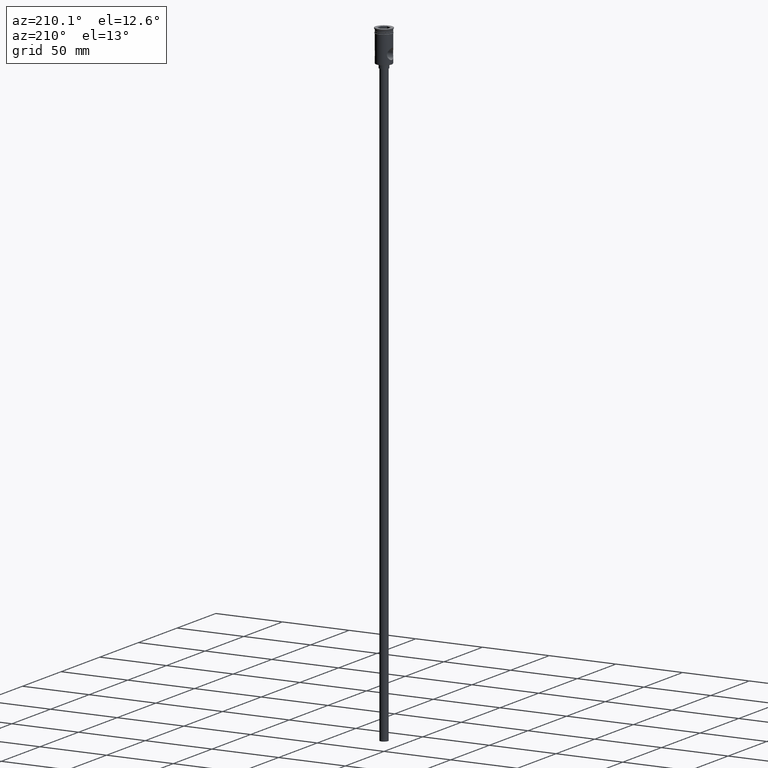
[diagram: clean part render]
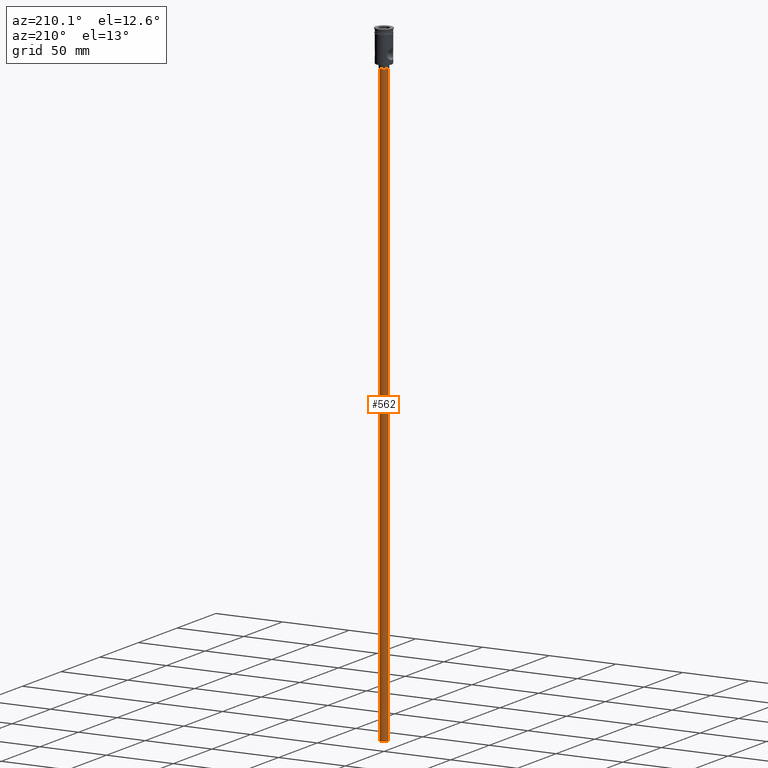
[diagram: same view with one face highlighted and labeled with its STEP entity id]
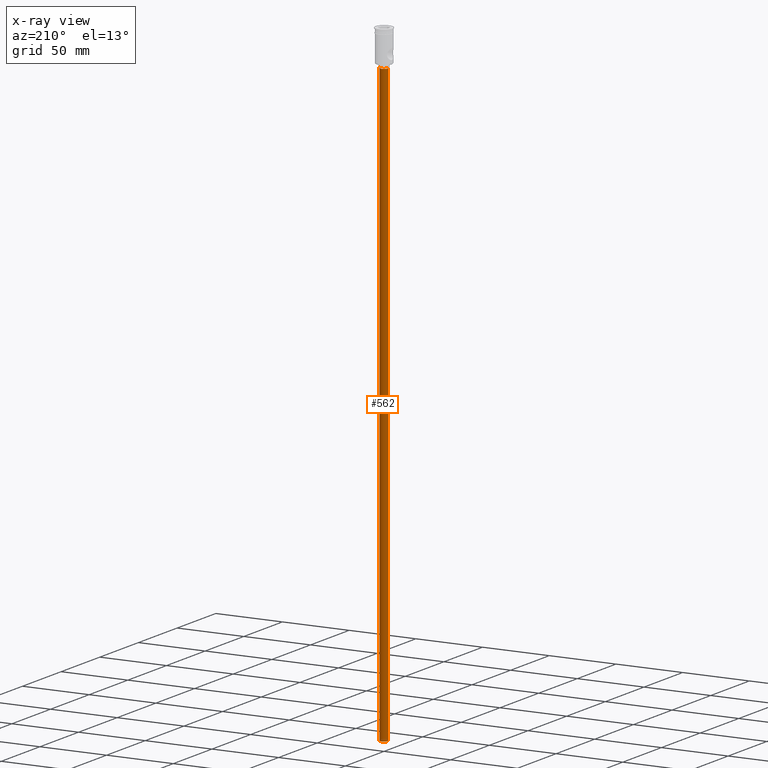
[diagram: x-ray of the same camera — body ghosted, the highlighted face saturated]
A machine part, auxiliary view. The second image highlights one B-rep face of the part: STEP entity #562.
The next image is the same camera in x-ray: the body ghosted, the highlighted face saturated — about 0% of this face is hidden behind the body in this view.
In plain terms, the highlighted cylindrical surface (edge-blend (fillet) strip) has radius 3 mm, axis along (-0, -0, 1).
Its self-contained STEP definition (entity closure, byte-faithful):
#56 = ORIENTED_EDGE ( 'NONE', *, *, #1367, .T. ) ;
#67 = CARTESIAN_POINT ( 'NONE',  ( 3.000000000000000444, 0.000000000000000000, -474.0000000000000568 ) ) ;
#241 = VERTEX_POINT ( 'NONE', #1136 ) ;
#246 = VERTEX_POINT ( 'NONE', #67 ) ;
#247 = VECTOR ( 'NONE', #390, 1000.000000000000000 ) ;
#282 = DIRECTION ( 'NONE',  ( 0.000000000000000000, 0.000000000000000000, -1.000000000000000000 ) ) ;
#290 = CARTESIAN_POINT ( 'NONE',  ( 3.000000000000000444, 0.000000000000000000, -474.0000000000000568 ) ) ;
#333 = FACE_OUTER_BOUND ( 'NONE', #594, .T. ) ;
#337 = CARTESIAN_POINT ( 'NONE',  ( -3.000000000000000444, 3.673940397442060361E-16, -27.00000000000000000 ) ) ;
#390 = DIRECTION ( 'NONE',  ( -0.000000000000000000, -0.000000000000000000, 1.000000000000000000 ) ) ;
#431 = DIRECTION ( 'NONE',  ( 0.000000000000000000, 0.000000000000000000, -1.000000000000000000 ) ) ;
#461 = EDGE_CURVE ( 'NONE', #616, #796, #841, .T. ) ;
#511 = DIRECTION ( 'NONE',  ( -1.000000000000000000, 0.000000000000000000, 0.000000000000000000 ) ) ;
#521 = VECTOR ( 'NONE', #752, 1000.000000000000000 ) ;
#562 = ADVANCED_FACE ( 'NONE', ( #333 ), #897, .T. ) ;
#594 = EDGE_LOOP ( 'NONE', ( #1309, #56, #1259, #1056 ) ) ;
#616 = VERTEX_POINT ( 'NONE', #337 ) ;
#639 = CARTESIAN_POINT ( 'NONE',  ( -3.000000000000000444, 3.673940397442060361E-16, -474.0000000000000568 ) ) ;
#655 = AXIS2_PLACEMENT_3D ( 'NONE', #1157, #282, #511 ) ;
#752 = DIRECTION ( 'NONE',  ( -0.000000000000000000, -0.000000000000000000, 1.000000000000000000 ) ) ;
#786 = AXIS2_PLACEMENT_3D ( 'NONE', #980, #431, #986 ) ;
#796 = VERTEX_POINT ( 'NONE', #1334 ) ;
#829 = LINE ( 'NONE', #639, #247 ) ;
#841 = CIRCLE ( 'NONE', #655, 3.000000000000000444 ) ;
#897 = CYLINDRICAL_SURFACE ( 'NONE', #1327, 3.000000000000000444 ) ;
#980 = CARTESIAN_POINT ( 'NONE',  ( 0.000000000000000000, 0.000000000000000000, -474.0000000000000568 ) ) ;
#986 = DIRECTION ( 'NONE',  ( -1.000000000000000000, 0.000000000000000000, 0.000000000000000000 ) ) ;
#1033 = CIRCLE ( 'NONE', #786, 3.000000000000000444 ) ;
#1039 = EDGE_CURVE ( 'NONE', #241, #246, #1033, .T. ) ;
#1056 = ORIENTED_EDGE ( 'NONE', *, *, #1357, .F. ) ;
#1103 = DIRECTION ( 'NONE',  ( -0.000000000000000000, -0.000000000000000000, 1.000000000000000000 ) ) ;
#1136 = CARTESIAN_POINT ( 'NONE',  ( -3.000000000000000444, 3.673940397442060361E-16, -474.0000000000000568 ) ) ;
#1157 = CARTESIAN_POINT ( 'NONE',  ( 0.000000000000000000, 0.000000000000000000, -27.00000000000000000 ) ) ;
#1244 = DIRECTION ( 'NONE',  ( 1.000000000000000000, 0.000000000000000000, 0.000000000000000000 ) ) ;
#1259 = ORIENTED_EDGE ( 'NONE', *, *, #461, .T. ) ;
#1309 = ORIENTED_EDGE ( 'NONE', *, *, #1039, .F. ) ;
#1327 = AXIS2_PLACEMENT_3D ( 'NONE', #1471, #1103, #1244 ) ;
#1334 = CARTESIAN_POINT ( 'NONE',  ( 3.000000000000000444, 0.000000000000000000, -27.00000000000000000 ) ) ;
#1357 = EDGE_CURVE ( 'NONE', #246, #796, #1427, .T. ) ;
#1367 = EDGE_CURVE ( 'NONE', #241, #616, #829, .T. ) ;
#1427 = LINE ( 'NONE', #290, #521 ) ;
#1471 = CARTESIAN_POINT ( 'NONE',  ( 0.000000000000000000, 0.000000000000000000, -474.0000000000000568 ) ) ;